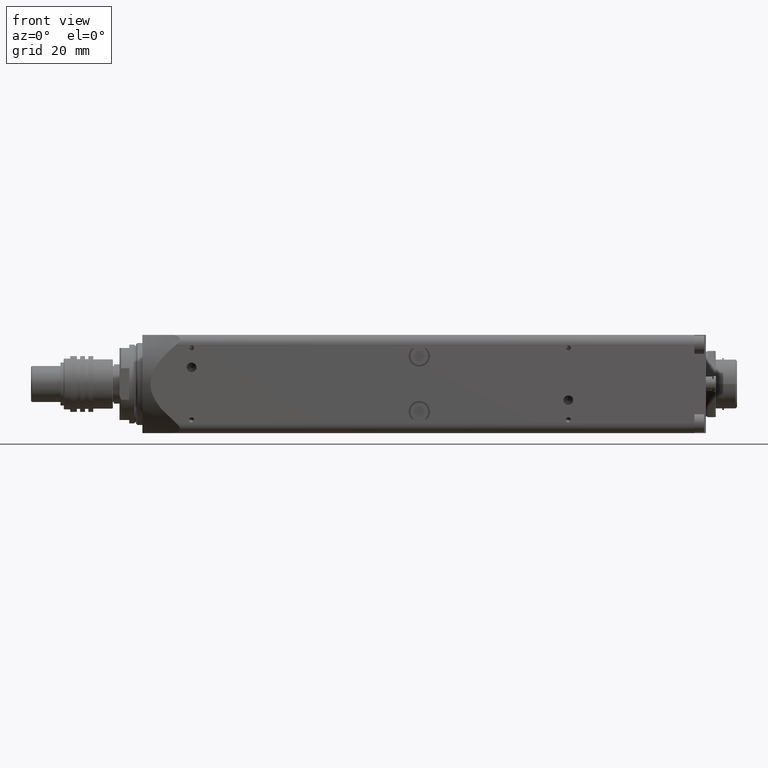
[diagram: clean part render]
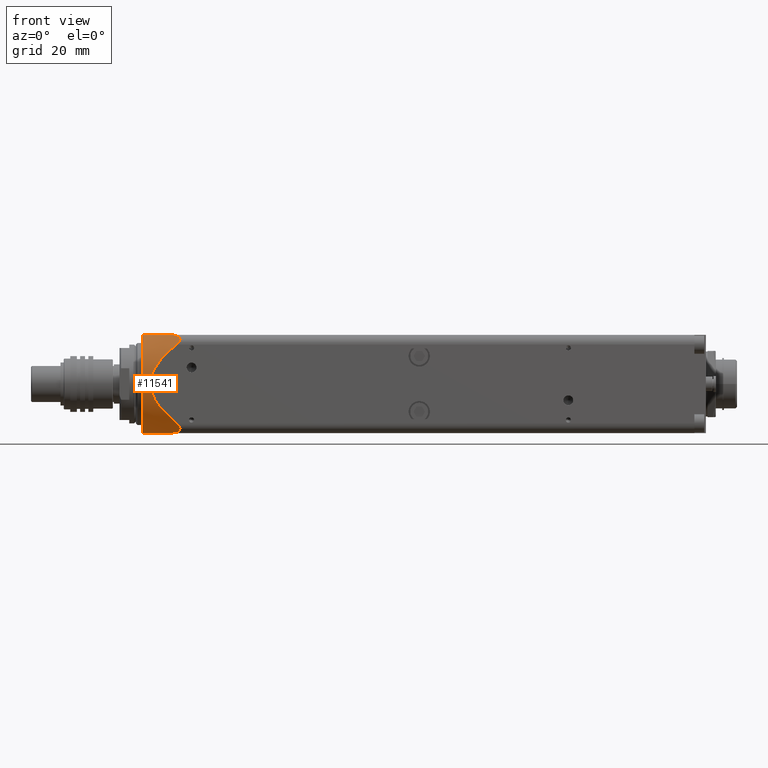
[diagram: same view with one face highlighted and labeled with its STEP entity id]
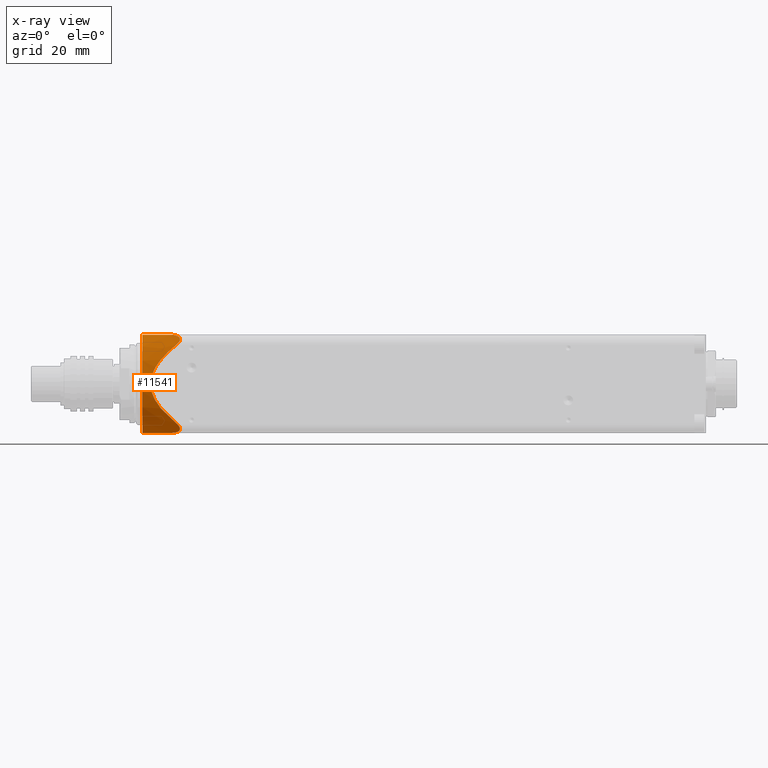
[diagram: x-ray of the same camera — body ghosted, the highlighted face saturated]
A machine part, front view. The second image highlights one B-rep face of the part: STEP entity #11541.
The next image is the same camera in x-ray: the body ghosted, the highlighted face saturated — about 0% of this face is hidden behind the body in this view.
In plain terms, the highlighted conical surface has half-angle 22 deg.
Its self-contained STEP definition (entity closure, byte-faithful):
#19 = CARTESIAN_POINT ( 'NONE',  ( 44.57469690990177500, -21.00000000000000700, -12.17269686037228900 ) ) ;
#156 = AXIS2_PLACEMENT_3D ( 'NONE', #5314, #2650, #11536 ) ;
#410 = CARTESIAN_POINT ( 'NONE',  ( 44.36262741667622600, -21.00000000000000000, -11.99999999999994700 ) ) ;
#489 = CARTESIAN_POINT ( 'NONE',  ( 41.14852306463865300, -21.00000000000000000, -9.111774211100755100 ) ) ;
#494 = CARTESIAN_POINT ( 'NONE',  ( 44.36262741667627600, -21.00000000000000000, 11.99999999999999800 ) ) ;
#573 = CARTESIAN_POINT ( 'NONE',  ( 44.77318756975706300, -20.98597456008961600, 12.35630717066626100 ) ) ;
#609 = CARTESIAN_POINT ( 'NONE',  ( 38.76395000284601600, -21.00000000000000000, 6.317587880271208400 ) ) ;
#650 = CARTESIAN_POINT ( 'NONE',  ( 42.49140181588038000, -17.99999999999999600, -15.00000000000000000 ) ) ;
#696 = CARTESIAN_POINT ( 'NONE',  ( 39.62762764321343700, -16.47476523917079300, 15.00000000000000200 ) ) ;
#767 = CARTESIAN_POINT ( 'NONE',  ( 42.49140181588038000, -17.99999999999999600, -15.00000000000000000 ) ) ;
#769 = CARTESIAN_POINT ( 'NONE',  ( 34.00000000000000000, -13.22875655532295800, 15.00000000000000000 ) ) ;
#850 = CARTESIAN_POINT ( 'NONE',  ( 45.04108029301377100, -20.92730563556902400, -12.66461069704051000 ) ) ;
#859 = B_SPLINE_CURVE_WITH_KNOTS ( 'NONE', 3,
 ( #6077, #8814, #696, #4341, #7901, #769 ),
 .UNSPECIFIED., .F., .F.,
 ( 4, 2, 4 ),
 ( 0.03311151103139346700, 0.03797773641671731800, 0.04284396180204116900 ),
 .UNSPECIFIED. ) ;
#1182 = CIRCLE ( 'NONE', #156, 20.00000000000000400 ) ;
#1454 = CARTESIAN_POINT ( 'NONE',  ( 45.47428686793671200, -20.48349124076780500, 13.68843736863847700 ) ) ;
#1484 = EDGE_LOOP ( 'NONE', ( #3680, #2280, #7227, #7987, #11281, #4891 ) ) ;
#1498 = CARTESIAN_POINT ( 'NONE',  ( 44.11213950113671000, -18.96831207909239900, 14.84363544181810500 ) ) ;
#1567 = CARTESIAN_POINT ( 'NONE',  ( 44.36262741667627600, -21.00000000000000000, 11.99999999999999800 ) ) ;
#1595 = EDGE_CURVE ( 'NONE', #7732, #9524, #9097, .T. ) ;
#1681 = CARTESIAN_POINT ( 'NONE',  ( 43.43927454996003900, -18.52150025367689400, -14.97027443503619700 ) ) ;
#1759 = CARTESIAN_POINT ( 'NONE',  ( 45.45358463917934000, -20.62388089216113600, -13.46068414169629400 ) ) ;
#1830 = CARTESIAN_POINT ( 'NONE',  ( 44.77498107373320800, -20.98582228776793500, -12.35800546991037800 ) ) ;
#2114 = CARTESIAN_POINT ( 'NONE',  ( 34.00000000000000000, -13.22875655532295800, -15.00000000000000000 ) ) ;
#2195 = CARTESIAN_POINT ( 'NONE',  ( 36.99224793330000700, -21.00000000000000000, -3.022343676057899700 ) ) ;
#2236 = CARTESIAN_POINT ( 'NONE',  ( 36.61142734109046900, -21.00000000000000400, 1.551963864480620000 ) ) ;
#2280 = ORIENTED_EDGE ( 'NONE', *, *, #3002, .T. ) ;
#2354 = CARTESIAN_POINT ( 'NONE',  ( 40.71590845540939800, -21.00000000000000000, -8.664984636190185400 ) ) ;
#2468 = CARTESIAN_POINT ( 'NONE',  ( 36.79400004643339600, -14.89053533452546500, -15.00000000000000000 ) ) ;
#2469 = CARTESIAN_POINT ( 'NONE',  ( 40.73726022243553000, -21.00000000000000000, 8.687549852704476500 ) ) ;
#2475 = CARTESIAN_POINT ( 'NONE',  ( 45.37815839144484200, -20.14897108884883200, 14.11052351193401900 ) ) ;
#2587 = CARTESIAN_POINT ( 'NONE',  ( 45.42260200337453600, -20.68701575453851000, -13.34028408093447900 ) ) ;
#2650 = DIRECTION ( 'NONE',  ( -1.000000000000000000, 0.0000000000000000000, 0.0000000000000000000 ) ) ;
#3002 = EDGE_CURVE ( 'NONE', #4942, #8419, #10925, .T. ) ;
#3136 = CARTESIAN_POINT ( 'NONE',  ( 36.81050502102658600, -21.00000000000000000, 2.465367630751844200 ) ) ;
#3218 = CARTESIAN_POINT ( 'NONE',  ( 45.03886921043516600, -20.92791081504965000, 12.66188214771055000 ) ) ;
#3335 = CARTESIAN_POINT ( 'NONE',  ( 45.26530870177235500, -20.83487316559791900, 12.98828741466963300 ) ) ;
#3390 = CARTESIAN_POINT ( 'NONE',  ( 42.49140181588038000, -17.99999999999999600, 15.00000000000000000 ) ) ;
#3525 = CARTESIAN_POINT ( 'NONE',  ( 45.46395808909754500, -20.40099933757101500, -13.80360361492906500 ) ) ;
#3597 = CARTESIAN_POINT ( 'NONE',  ( 45.40565592908911400, -20.23149805793985900, -14.00952736637555200 ) ) ;
#3680 = ORIENTED_EDGE ( 'NONE', *, *, #5088, .T. ) ;
#3991 = CARTESIAN_POINT ( 'NONE',  ( 36.53959290472975900, -21.00000000000000000, -1.210890452586688100 ) ) ;
#4075 = B_SPLINE_CURVE_WITH_KNOTS ( 'NONE', 3,
 ( #650, #10567, #6936, #2468, #8767, #9685 ),
 .UNSPECIFIED., .F., .F.,
 ( 4, 2, 4 ),
 ( 0.03311151103139346700, 0.03797773641671731800, 0.04284396180204116900 ),
 .UNSPECIFIED. ) ;
#4294 = CONICAL_SURFACE ( 'NONE', #6848, 20.00000000000000400, 0.3839724354387533700 ) ;
#4297 = CARTESIAN_POINT ( 'NONE',  ( 43.41636151796986800, -21.00000000000000400, 11.22941698356298300 ) ) ;
#4341 = CARTESIAN_POINT ( 'NONE',  ( 36.79400004643339600, -14.89053533452546500, 15.00000000000000000 ) ) ;
#4461 = CARTESIAN_POINT ( 'NONE',  ( 45.32932975555991800, -20.79150284063254300, -13.10631233089258900 ) ) ;
#4891 = ORIENTED_EDGE ( 'NONE', *, *, #1595, .T. ) ;
#4905 = CARTESIAN_POINT ( 'NONE',  ( 36.47563447344181500, -20.99999999999999600, 0.3214656729705601700 ) ) ;
#4940 = CARTESIAN_POINT ( 'NONE',  ( 37.48458196814518600, -21.00000000000000000, 4.196892130189831400 ) ) ;
#4942 = VERTEX_POINT ( 'NONE', #9339 ) ;
#5027 = CARTESIAN_POINT ( 'NONE',  ( 45.45280534574118300, -20.62626594319732100, 13.45646032777660200 ) ) ;
#5063 = CARTESIAN_POINT ( 'NONE',  ( 38.39332691079913200, -21.00000000000000000, -5.780920500350157800 ) ) ;
#5088 = EDGE_CURVE ( 'NONE', #9524, #4942, #8936, .T. ) ;
#5285 = DIRECTION ( 'NONE',  ( 0.0000000000000000000, 0.0000000000000000000, 1.000000000000000000 ) ) ;
#5314 = CARTESIAN_POINT ( 'NONE',  ( 34.00000000000000000, 3.469446951953614200E-015, 0.0000000000000000000 ) ) ;
#5332 = CARTESIAN_POINT ( 'NONE',  ( 45.16492658903214200, -19.87614863024908700, -14.34345678894864100 ) ) ;
#5404 = CARTESIAN_POINT ( 'NONE',  ( 44.92545592977164400, -19.61541962593997500, -14.53718604953358600 ) ) ;
#5807 = CARTESIAN_POINT ( 'NONE',  ( 36.56047898203078000, -21.00000000000000000, 1.242733373822370900 ) ) ;
#5885 = CARTESIAN_POINT ( 'NONE',  ( 44.32773813174213700, -19.12229288238355800, 14.78787785902460800 ) ) ;
#5924 = CARTESIAN_POINT ( 'NONE',  ( 45.42172562780413600, -20.68840076652761400, 13.33748015262091800 ) ) ;
#5944 = VERTEX_POINT ( 'NONE', #11519 ) ;
#6077 = CARTESIAN_POINT ( 'NONE',  ( 42.49140181588038000, -17.99999999999999600, 15.00000000000000000 ) ) ;
#6225 = CARTESIAN_POINT ( 'NONE',  ( 42.97179633923550300, -18.25265114536370700, -15.00000000000000700 ) ) ;
#6266 = CARTESIAN_POINT ( 'NONE',  ( 44.73291373448829900, -19.44450740106565300, -14.63542864051503800 ) ) ;
#6701 = CARTESIAN_POINT ( 'NONE',  ( 39.49138993013345100, -21.00000000000000000, -7.272387099350972900 ) ) ;
#6826 = CARTESIAN_POINT ( 'NONE',  ( 42.49140181588038000, -17.99999999999999600, 15.00000000000000000 ) ) ;
#6828 = FACE_OUTER_BOUND ( 'NONE', #1484, .T. ) ;
#6848 = AXIS2_PLACEMENT_3D ( 'NONE', #11659, #10751, #5285 ) ;
#6864 = CARTESIAN_POINT ( 'NONE',  ( 37.46755736661446400, -21.00000000000000000, -4.161401791454731700 ) ) ;
#6936 = CARTESIAN_POINT ( 'NONE',  ( 39.62762764321343700, -16.47476523917079300, -15.00000000000000200 ) ) ;
#7049 = CARTESIAN_POINT ( 'NONE',  ( 39.51103841506480300, -20.99999999999999600, 7.296486194264147700 ) ) ;
#7139 = CARTESIAN_POINT ( 'NONE',  ( 44.32558535431992700, -19.12064837501452200, -14.78858978169211500 ) ) ;
#7227 = ORIENTED_EDGE ( 'NONE', *, *, #8265, .T. ) ;
#7698 = CARTESIAN_POINT ( 'NONE',  ( 44.73304237434837900, -19.44467718386539800, 14.63528216802436400 ) ) ;
#7732 = VERTEX_POINT ( 'NONE', #9317 ) ;
#7735 = CARTESIAN_POINT ( 'NONE',  ( 43.40681190391121200, -21.00000000000000400, -11.22164034232801600 ) ) ;
#7773 = CARTESIAN_POINT ( 'NONE',  ( 41.17023829763959200, -21.00000000000000700, 9.133690169311453400 ) ) ;
#7818 = CARTESIAN_POINT ( 'NONE',  ( 39.90780027659048600, -21.00000000000000000, 7.768941670891504900 ) ) ;
#7860 = CARTESIAN_POINT ( 'NONE',  ( 45.46484280162596300, -20.40490157947973800, 13.79848407048810800 ) ) ;
#7901 = CARTESIAN_POINT ( 'NONE',  ( 35.38826075329834700, -14.07674820183112600, 15.00000000000000200 ) ) ;
#7987 = ORIENTED_EDGE ( 'NONE', *, *, #8478, .F. ) ;
#8015 = CARTESIAN_POINT ( 'NONE',  ( 44.10756176882331700, -18.96515552067236900, -14.84466131629396000 ) ) ;
#8056 = CARTESIAN_POINT ( 'NONE',  ( 45.23687279069297800, -19.96407268199570600, -14.27099820751079300 ) ) ;
#8142 = CARTESIAN_POINT ( 'NONE',  ( 44.36262741667622600, -21.00000000000000000, -11.99999999999994700 ) ) ;
#8265 = EDGE_CURVE ( 'NONE', #8419, #5944, #859, .T. ) ;
#8419 = VERTEX_POINT ( 'NONE', #3390 ) ;
#8478 = EDGE_CURVE ( 'NONE', #9414, #5944, #1182, .T. ) ;
#8614 = CARTESIAN_POINT ( 'NONE',  ( 43.44075998629307400, -18.52225407390178400, 14.97032219064093400 ) ) ;
#8651 = CARTESIAN_POINT ( 'NONE',  ( 39.88786762646982000, -20.99999999999999600, -7.745730111546338400 ) ) ;
#8767 = CARTESIAN_POINT ( 'NONE',  ( 35.38826075329834700, -14.07674820183112600, -15.00000000000000200 ) ) ;
#8814 = CARTESIAN_POINT ( 'NONE',  ( 41.05566708563472400, -17.24491224108549000, 15.00000000000000000 ) ) ;
#8936 = B_SPLINE_CURVE_WITH_KNOTS ( 'NONE', 3,
 ( #410, #7735, #11315, #489, #2354, #8651, #6701, #10486, #5063, #11394, #6864, #2195, #9421, #3991, #10338, #4905, #11243, #5807, #2236, #3136, #9459, #4940, #11278, #9754, #609, #7049, #7818, #2469, #7773, #9723, #4297, #1567 ),
 .UNSPECIFIED., .F., .F.,
 ( 4, 2, 2, 2, 2, 2, 2, 2, 2, 2, 2, 2, 2, 2, 2, 4 ),
 ( 0.08734463949546281100, 0.09102115615953758300, 0.09285941449157499000, 0.09469767282361238300, 0.09653593115564977600, 0.09837418948768718300, 0.1002124478197245800, 0.1020507061517619800, 0.1029698353177806700, 0.1038889644837993800, 0.1057272228158367700, 0.1075654811478741600, 0.1094037394799115500, 0.1112419978119489300, 0.1130802561439863300, 0.1167567728080611300 ),
 .UNSPECIFIED. ) ;
#8973 = CARTESIAN_POINT ( 'NONE',  ( 45.26644774904509900, -20.83419495317580000, -12.99024637246329100 ) ) ;
#9097 = B_SPLINE_CURVE_WITH_KNOTS ( 'NONE', 3,
 ( #767, #6225, #1681, #8015, #7139, #6266, #5404, #5332, #8056, #9842, #3597, #3525, #11705, #1759, #2587, #4461, #8973, #9885, #850, #1830, #19, #8142 ),
 .UNSPECIFIED., .F., .F.,
 ( 4, 2, 2, 2, 2, 2, 2, 2, 2, 2, 4 ),
 ( 0.0000000000000000000, 0.001618918351538839900, 0.002428377527308260200, 0.003237836703077679900, 0.003642566290962383800, 0.004047295878847086500, 0.004452025466731790400, 0.004856755054616493500, 0.005261484642501197500, 0.005666214230385901500, 0.006475673406155318100 ),
 .UNSPECIFIED. ) ;
#9317 = CARTESIAN_POINT ( 'NONE',  ( 42.49140181588038000, -17.99999999999999600, -15.00000000000000000 ) ) ;
#9339 = CARTESIAN_POINT ( 'NONE',  ( 44.36262741667627600, -21.00000000000000000, 11.99999999999999800 ) ) ;
#9414 = VERTEX_POINT ( 'NONE', #2114 ) ;
#9421 = CARTESIAN_POINT ( 'NONE',  ( 36.80121624137272100, -21.00000000000000400, -2.433608714003282300 ) ) ;
#9459 = CARTESIAN_POINT ( 'NONE',  ( 37.00319814901006800, -20.99999999999999600, 3.053592631061359700 ) ) ;
#9524 = VERTEX_POINT ( 'NONE', #10154 ) ;
#9544 = CARTESIAN_POINT ( 'NONE',  ( 42.97217853655081400, -18.25285215221281000, 15.00000000000000500 ) ) ;
#9626 = CARTESIAN_POINT ( 'NONE',  ( 45.32810508945901500, -20.79246231578158100, 13.10385961746089100 ) ) ;
#9685 = CARTESIAN_POINT ( 'NONE',  ( 34.00000000000000000, -13.22875655532295800, -15.00000000000000000 ) ) ;
#9723 = CARTESIAN_POINT ( 'NONE',  ( 42.49436833705299000, -21.00000000000000000, 10.42446410904961200 ) ) ;
#9754 = CARTESIAN_POINT ( 'NONE',  ( 38.41352764584075900, -20.99999999999999600, 5.811215166344768900 ) ) ;
#9842 = CARTESIAN_POINT ( 'NONE',  ( 45.35809234042874000, -20.14273640328075700, -14.10325820210796400 ) ) ;
#9885 = CARTESIAN_POINT ( 'NONE',  ( 45.12260997740625600, -20.90173856675961900, -12.77017024154646000 ) ) ;
#10154 = CARTESIAN_POINT ( 'NONE',  ( 44.36262741667622600, -21.00000000000000000, -11.99999999999994700 ) ) ;
#10174 = EDGE_CURVE ( 'NONE', #7732, #9414, #4075, .T. ) ;
#10338 = CARTESIAN_POINT ( 'NONE',  ( 36.47403030611355500, -21.00000000000000400, -0.5985495505346342100 ) ) ;
#10486 = CARTESIAN_POINT ( 'NONE',  ( 38.74417356167951000, -21.00000000000000000, -6.289940082229813700 ) ) ;
#10529 = CARTESIAN_POINT ( 'NONE',  ( 45.12132605632861300, -20.90219570118813800, 12.76842565744949600 ) ) ;
#10567 = CARTESIAN_POINT ( 'NONE',  ( 41.05566708563472400, -17.24491224108549000, -15.00000000000000000 ) ) ;
#10601 = CARTESIAN_POINT ( 'NONE',  ( 44.57427684726051400, -20.99999999999999600, 12.17235478618613200 ) ) ;
#10751 = DIRECTION ( 'NONE',  ( 1.000000000000000000, 0.0000000000000000000, 0.0000000000000000000 ) ) ;
#10925 = B_SPLINE_CURVE_WITH_KNOTS ( 'NONE', 3,
 ( #494, #10601, #573, #3218, #10529, #3335, #9626, #5924, #5027, #1454, #7860, #2475, #11434, #11399, #7698, #5885, #1498, #8614, #9544, #6826 ),
 .UNSPECIFIED., .F., .F.,
 ( 4, 2, 2, 2, 2, 2, 2, 2, 2, 4 ),
 ( 7.757919228897728500E-018, 0.0008134177454966995100, 0.001220126618245044500, 0.001626835490993389700, 0.002033544363741734600, 0.002440253236490080000, 0.003253670981986780300, 0.004067088727483480500, 0.004880506472980180800, 0.006507341963973587400 ),
 .UNSPECIFIED. ) ;
#11243 = CARTESIAN_POINT ( 'NONE',  ( 36.49280444642524700, -20.99999999999999600, 0.6283877167463519700 ) ) ;
#11278 = CARTESIAN_POINT ( 'NONE',  ( 37.77468037473798300, -21.00000000000000000, 4.753091998595867700 ) ) ;
#11281 = ORIENTED_EDGE ( 'NONE', *, *, #10174, .F. ) ;
#11315 = CARTESIAN_POINT ( 'NONE',  ( 42.47781639356321600, -21.00000000000000000, -10.40977518438332800 ) ) ;
#11394 = CARTESIAN_POINT ( 'NONE',  ( 37.75344876363478600, -20.99999999999999600, -4.714551243592447700 ) ) ;
#11399 = CARTESIAN_POINT ( 'NONE',  ( 44.92606321958908200, -19.61583366843294800, 14.53706223175833400 ) ) ;
#11434 = CARTESIAN_POINT ( 'NONE',  ( 45.24714550887559700, -19.96591578495167200, 14.27657161941678200 ) ) ;
#11519 = CARTESIAN_POINT ( 'NONE',  ( 34.00000000000000000, -13.22875655532295800, 15.00000000000000000 ) ) ;
#11536 = DIRECTION ( 'NONE',  ( 0.0000000000000000000, 0.0000000000000000000, 1.000000000000000000 ) ) ;
#11541 = ADVANCED_FACE ( 'NONE', ( #6828 ), #4294, .T. ) ;
#11659 = CARTESIAN_POINT ( 'NONE',  ( 34.00000000000000000, 3.469446951953614200E-015, 0.0000000000000000000 ) ) ;
#11705 = CARTESIAN_POINT ( 'NONE',  ( 45.47414350253107800, -20.48156358093031700, -13.69121000820468800 ) ) ;